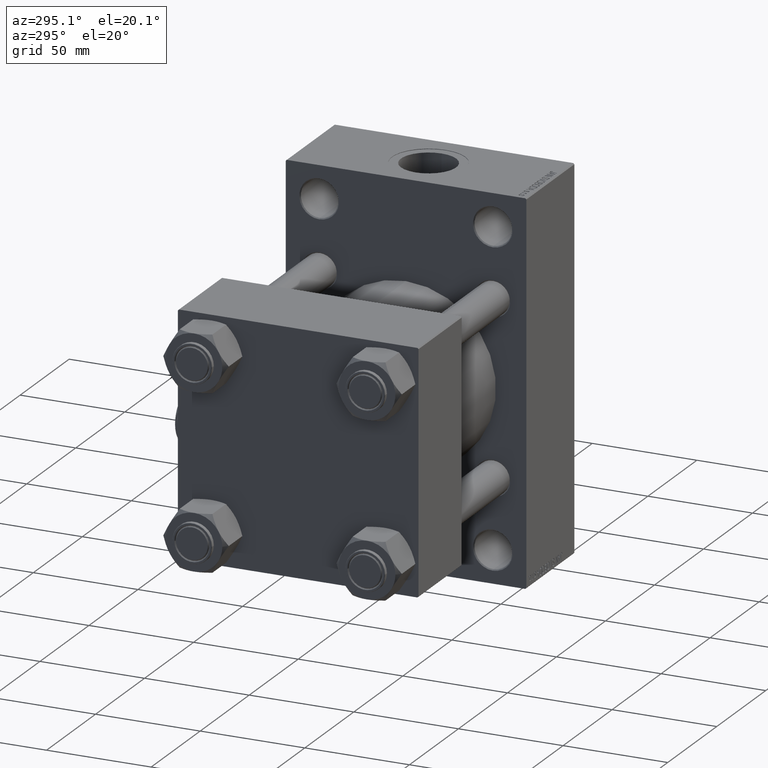
[diagram: clean part render]
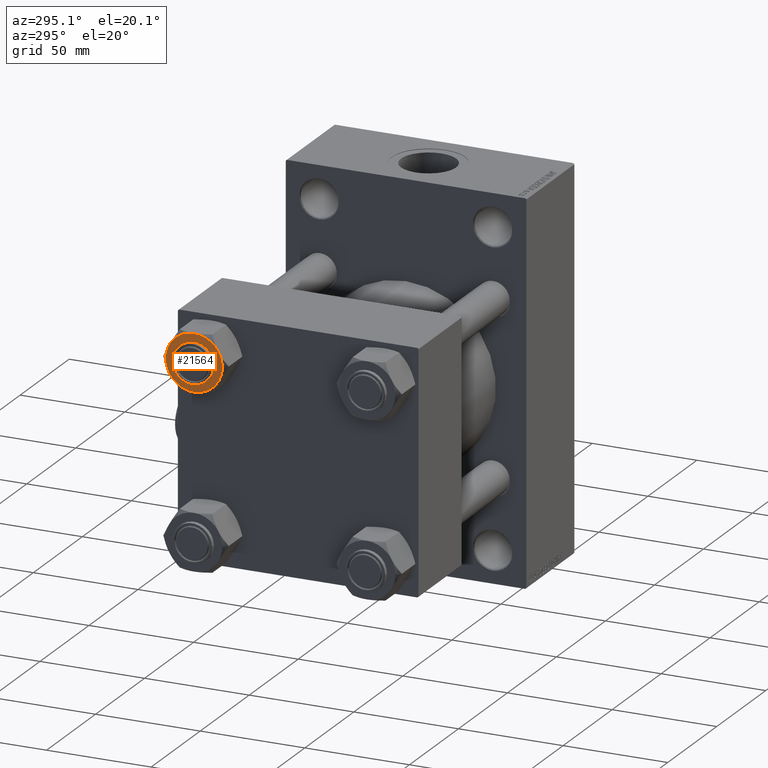
[diagram: same view with one face highlighted and labeled with its STEP entity id]
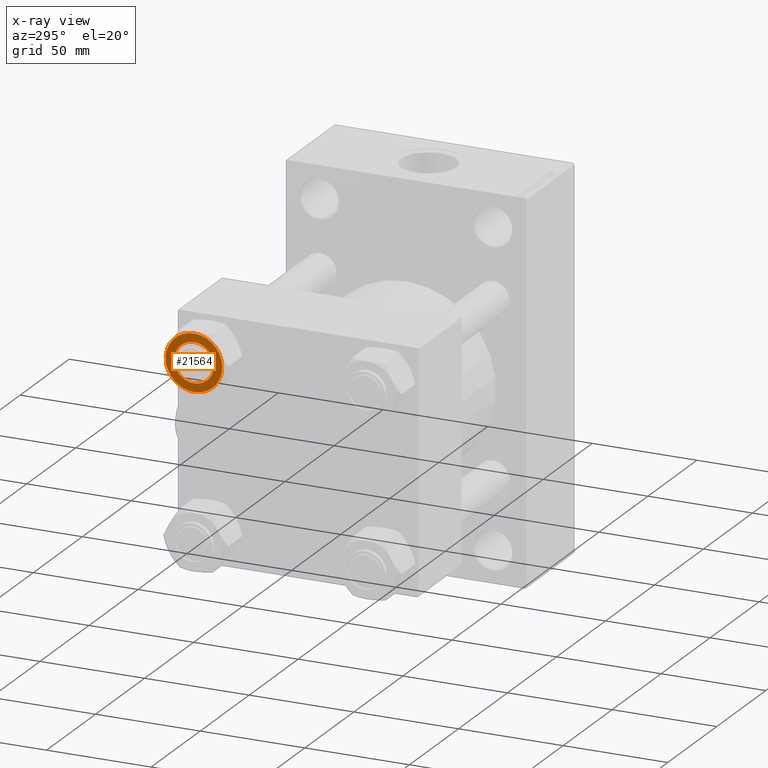
[diagram: x-ray of the same camera — body ghosted, the highlighted face saturated]
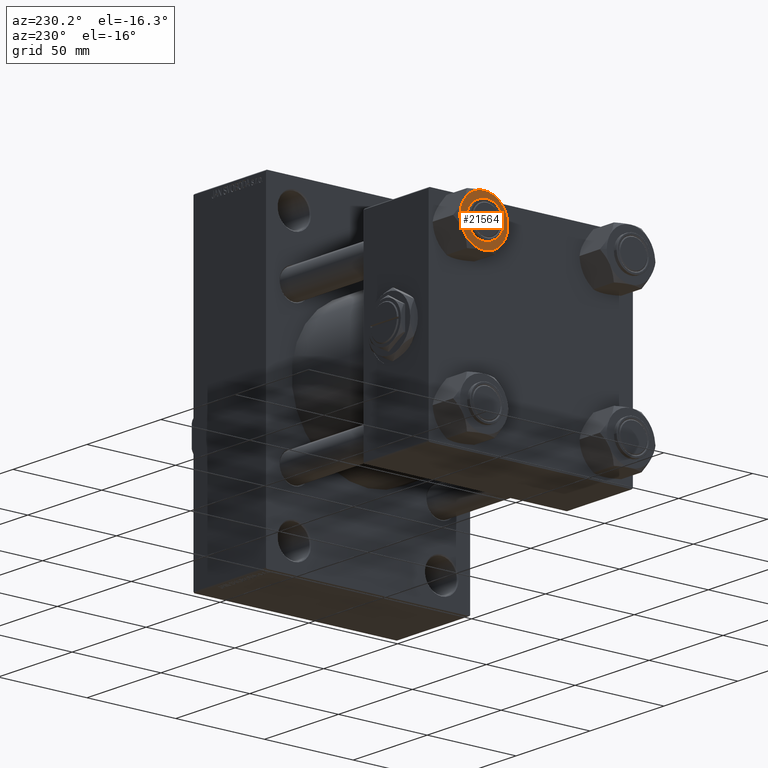
[diagram: same view with one face highlighted and labeled with its STEP entity id]
A machine part, auxiliary view. The second image highlights one B-rep face of the part: STEP entity #21564.
The next image is the same camera in x-ray: the body ghosted, the highlighted face saturated — about 0% of this face is hidden behind the body in this view.
A second angle (auxiliary view) of the same face is appended — the face is thin or edge-on in the first view.
In plain terms, the highlighted planar face has unit normal (1, 0, 0).
Its self-contained STEP definition (entity closure, byte-faithful):
#245 = CIRCLE ( 'NONE', #20852, 13.52731680711293727 ) ;
#1090 = DIRECTION ( 'NONE',  ( 0.000000000000000000, -0.000000000000000000, -1.000000000000000000 ) ) ;
#1570 = CARTESIAN_POINT ( 'NONE',  ( 0.000000000000000000, 0.000000000000000000, 0.000000000000000000 ) ) ;
#1840 = CARTESIAN_POINT ( 'NONE',  ( 13.52731680711293727, 0.000000000000000000, 0.000000000000000000 ) ) ;
#2368 = CARTESIAN_POINT ( 'NONE',  ( 3.004629197474319246E-15, -13.52731680711293727, 0.000000000000000000 ) ) ;
#2485 = ORIENTED_EDGE ( 'NONE', *, *, #7292, .F. ) ;
#3648 = CARTESIAN_POINT ( 'NONE',  ( 0.000000000000000000, 0.000000000000000000, 0.000000000000000000 ) ) ;
#4224 = AXIS2_PLACEMENT_3D ( 'NONE', #30173, #48838, #29434 ) ;
#4760 = DIRECTION ( 'NONE',  ( 0.000000000000000000, -0.000000000000000000, -1.000000000000000000 ) ) ;
#5513 = DIRECTION ( 'NONE',  ( 1.000000000000000000, 0.000000000000000000, 0.000000000000000000 ) ) ;
#5582 = CARTESIAN_POINT ( 'NONE',  ( 11.71500000000000519, 6.763658403556469523, 0.000000000000000000 ) ) ;
#6079 = VERTEX_POINT ( 'NONE', #2368 ) ;
#6429 = ORIENTED_EDGE ( 'NONE', *, *, #39162, .F. ) ;
#7133 = DIRECTION ( 'NONE',  ( 1.000000000000000000, 0.000000000000000000, 0.000000000000000000 ) ) ;
#7292 = EDGE_CURVE ( 'NONE', #39965, #6079, #19940, .T. ) ;
#7327 = DIRECTION ( 'NONE',  ( -1.000000000000000000, 0.000000000000000000, 0.000000000000000000 ) ) ;
#7920 = DIRECTION ( 'NONE',  ( 0.000000000000000000, -0.000000000000000000, -1.000000000000000000 ) ) ;
#8293 = VERTEX_POINT ( 'NONE', #22309 ) ;
#9911 = VERTEX_POINT ( 'NONE', #19464 ) ;
#10308 = CARTESIAN_POINT ( 'NONE',  ( 0.000000000000000000, 0.000000000000000000, 0.000000000000000000 ) ) ;
#11455 = CARTESIAN_POINT ( 'NONE',  ( -9.500000000000000000, 0.000000000000000000, 0.000000000000000000 ) ) ;
#11816 = DIRECTION ( 'NONE',  ( -1.000000000000000000, 0.000000000000000000, 0.000000000000000000 ) ) ;
#12114 = CIRCLE ( 'NONE', #12909, 9.500000000000000000 ) ;
#12231 = CARTESIAN_POINT ( 'NONE',  ( 0.000000000000000000, 0.000000000000000000, 0.000000000000000000 ) ) ;
#12909 = AXIS2_PLACEMENT_3D ( 'NONE', #3648, #22753, #7133 ) ;
#15435 = CIRCLE ( 'NONE', #32880, 9.500000000000000000 ) ;
#15727 = VERTEX_POINT ( 'NONE', #5582 ) ;
#16694 = DIRECTION ( 'NONE',  ( -1.000000000000000000, 0.000000000000000000, 0.000000000000000000 ) ) ;
#17602 = EDGE_CURVE ( 'NONE', #35052, #43905, #12114, .T. ) ;
#18386 = AXIS2_PLACEMENT_3D ( 'NONE', #10308, #21744, #25458 ) ;
#19464 = CARTESIAN_POINT ( 'NONE',  ( -11.71500000000000874, -6.763658403556459753, 0.000000000000000000 ) ) ;
#19940 = CIRCLE ( 'NONE', #18386, 13.52731680711293727 ) ;
#20038 = AXIS2_PLACEMENT_3D ( 'NONE', #35264, #24311, #31767 ) ;
#20241 = VERTEX_POINT ( 'NONE', #28990 ) ;
#20852 = AXIS2_PLACEMENT_3D ( 'NONE', #40965, #7920, #26301 ) ;
#21564 = ADVANCED_FACE ( 'NONE', ( #29693, #49072 ), #44860, .F. ) ;
#21744 = DIRECTION ( 'NONE',  ( 0.000000000000000000, -0.000000000000000000, -1.000000000000000000 ) ) ;
#21812 = ORIENTED_EDGE ( 'NONE', *, *, #46935, .F. ) ;
#22184 = CIRCLE ( 'NONE', #32442, 13.52731680711293727 ) ;
#22226 = CARTESIAN_POINT ( 'NONE',  ( 0.000000000000000000, 0.000000000000000000, 0.000000000000000000 ) ) ;
#22309 = CARTESIAN_POINT ( 'NONE',  ( -1.502314598737160017E-15, 13.52731680711293727, 0.000000000000000000 ) ) ;
#22753 = DIRECTION ( 'NONE',  ( 0.000000000000000000, 0.000000000000000000, 1.000000000000000000 ) ) ;
#24311 = DIRECTION ( 'NONE',  ( 0.000000000000000000, -0.000000000000000000, -1.000000000000000000 ) ) ;
#24367 = EDGE_CURVE ( 'NONE', #15727, #26324, #24893, .T. ) ;
#24511 = ORIENTED_EDGE ( 'NONE', *, *, #25402, .F. ) ;
#24893 = CIRCLE ( 'NONE', #28877, 13.52731680711293727 ) ;
#25402 = EDGE_CURVE ( 'NONE', #43905, #35052, #15435, .T. ) ;
#25458 = DIRECTION ( 'NONE',  ( -1.000000000000000000, 0.000000000000000000, 0.000000000000000000 ) ) ;
#25822 = ORIENTED_EDGE ( 'NONE', *, *, #17602, .F. ) ;
#25884 = EDGE_LOOP ( 'NONE', ( #31759, #21812, #6429, #2485, #40156, #35619, #30994 ) ) ;
#26301 = DIRECTION ( 'NONE',  ( -1.000000000000000000, 0.000000000000000000, 0.000000000000000000 ) ) ;
#26324 = VERTEX_POINT ( 'NONE', #1840 ) ;
#28877 = AXIS2_PLACEMENT_3D ( 'NONE', #22226, #4760, #7327 ) ;
#28990 = CARTESIAN_POINT ( 'NONE',  ( -11.71500000000000341, 6.763658403556467746, 0.000000000000000000 ) ) ;
#29434 = DIRECTION ( 'NONE',  ( -1.000000000000000000, 0.000000000000000000, -0.000000000000000000 ) ) ;
#29693 = FACE_BOUND ( 'NONE', #40743, .T. ) ;
#30173 = CARTESIAN_POINT ( 'NONE',  ( 0.000000000000000000, 0.000000000000000000, 0.000000000000000000 ) ) ;
#30994 = ORIENTED_EDGE ( 'NONE', *, *, #45546, .T. ) ;
#31759 = ORIENTED_EDGE ( 'NONE', *, *, #47182, .F. ) ;
#31767 = DIRECTION ( 'NONE',  ( -1.000000000000000000, 0.000000000000000000, 0.000000000000000000 ) ) ;
#32442 = AXIS2_PLACEMENT_3D ( 'NONE', #39539, #41874, #11816 ) ;
#32880 = AXIS2_PLACEMENT_3D ( 'NONE', #41066, #37085, #37588 ) ;
#35052 = VERTEX_POINT ( 'NONE', #35238 ) ;
#35238 = CARTESIAN_POINT ( 'NONE',  ( 9.500000000000000000, 1.163414459189985485E-15, 0.000000000000000000 ) ) ;
#35264 = CARTESIAN_POINT ( 'NONE',  ( 0.000000000000000000, 0.000000000000000000, 0.000000000000000000 ) ) ;
#35599 = AXIS2_PLACEMENT_3D ( 'NONE', #1570, #1090, #16694 ) ;
#35619 = ORIENTED_EDGE ( 'NONE', *, *, #24367, .F. ) ;
#36377 = CIRCLE ( 'NONE', #35599, 13.52731680711293727 ) ;
#37085 = DIRECTION ( 'NONE',  ( 0.000000000000000000, 0.000000000000000000, 1.000000000000000000 ) ) ;
#37588 = DIRECTION ( 'NONE',  ( 1.000000000000000000, 0.000000000000000000, 0.000000000000000000 ) ) ;
#38252 = CIRCLE ( 'NONE', #46162, 13.52731680711293727 ) ;
#38567 = DIRECTION ( 'NONE',  ( 0.000000000000000000, 0.000000000000000000, 1.000000000000000000 ) ) ;
#39162 = EDGE_CURVE ( 'NONE', #6079, #9911, #36377, .T. ) ;
#39539 = CARTESIAN_POINT ( 'NONE',  ( 0.000000000000000000, 0.000000000000000000, 0.000000000000000000 ) ) ;
#39907 = CIRCLE ( 'NONE', #20038, 13.52731680711293727 ) ;
#39965 = VERTEX_POINT ( 'NONE', #48876 ) ;
#40070 = EDGE_CURVE ( 'NONE', #26324, #39965, #22184, .T. ) ;
#40156 = ORIENTED_EDGE ( 'NONE', *, *, #40070, .F. ) ;
#40743 = EDGE_LOOP ( 'NONE', ( #24511, #25822 ) ) ;
#40965 = CARTESIAN_POINT ( 'NONE',  ( 0.000000000000000000, 0.000000000000000000, 0.000000000000000000 ) ) ;
#41066 = CARTESIAN_POINT ( 'NONE',  ( 0.000000000000000000, 0.000000000000000000, 0.000000000000000000 ) ) ;
#41874 = DIRECTION ( 'NONE',  ( 0.000000000000000000, -0.000000000000000000, -1.000000000000000000 ) ) ;
#43905 = VERTEX_POINT ( 'NONE', #11455 ) ;
#44860 = PLANE ( 'NONE',  #4224 ) ;
#45546 = EDGE_CURVE ( 'NONE', #15727, #8293, #38252, .T. ) ;
#46162 = AXIS2_PLACEMENT_3D ( 'NONE', #12231, #38567, #5513 ) ;
#46935 = EDGE_CURVE ( 'NONE', #9911, #20241, #39907, .T. ) ;
#47182 = EDGE_CURVE ( 'NONE', #20241, #8293, #245, .T. ) ;
#48838 = DIRECTION ( 'NONE',  ( 0.000000000000000000, 0.000000000000000000, -1.000000000000000000 ) ) ;
#48876 = CARTESIAN_POINT ( 'NONE',  ( 11.71500000000000341, -6.763658403556471299, 0.000000000000000000 ) ) ;
#49072 = FACE_OUTER_BOUND ( 'NONE', #25884, .T. ) ;